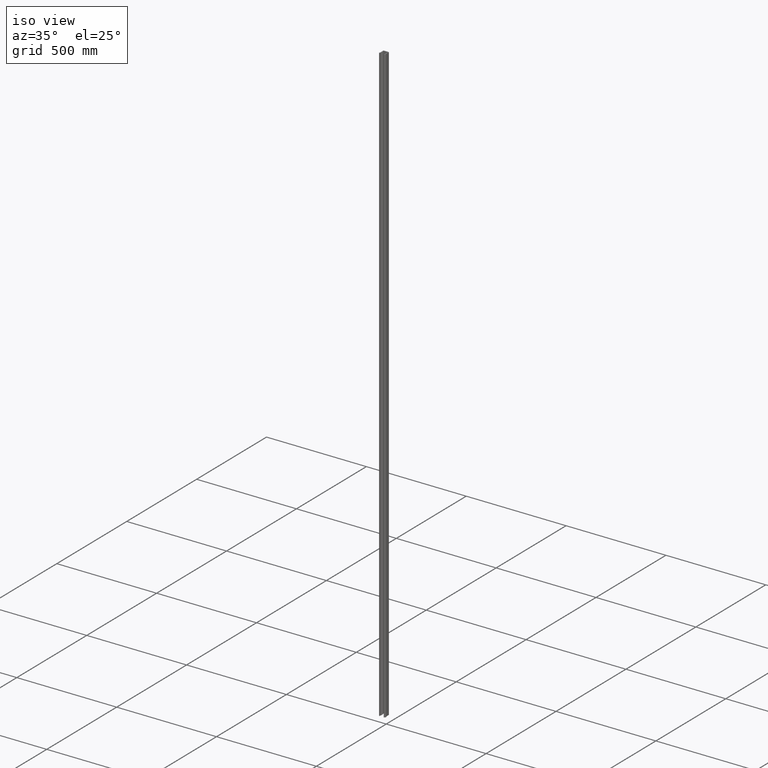
[diagram: clean part render]
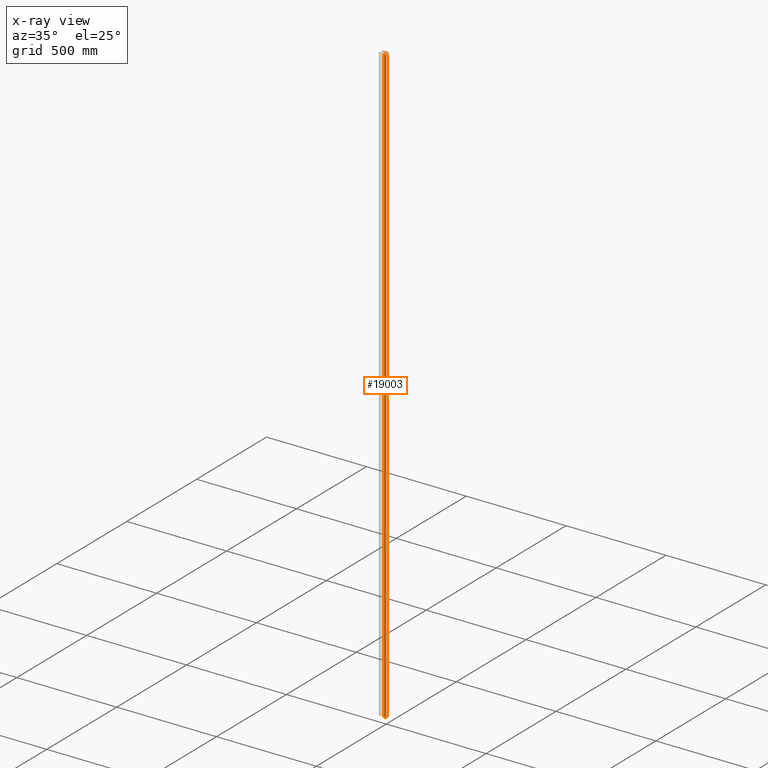
[diagram: x-ray — body ghosted, one internal face saturated and labeled with its STEP entity id]
A machine part, iso view, then the same camera in x-ray: the body is ghosted and one INTERNAL B-rep face — a face not visible from any outside direction — is saturated and labeled: STEP entity #19003.
In plain terms, the highlighted cylindrical surface (edge-blend (fillet) strip) has radius 10 mm, axis along (0, 0, -1).
Its self-contained STEP definition (entity closure, byte-faithful):
#403 = FACE_OUTER_BOUND ( 'NONE', #2275, .T. ) ;
#561 = CARTESIAN_POINT ( 'NONE',  ( 17.48065043899262960, -25.12699001329063009, 1500.000000000000000 ) ) ;
#830 = ORIENTED_EDGE ( 'NONE', *, *, #15275, .T. ) ;
#1692 = CARTESIAN_POINT ( 'NONE',  ( 17.48065043899262960, -25.12699001329063009, -1500.000000000000000 ) ) ;
#2275 = EDGE_LOOP ( 'NONE', ( #18480, #7728, #6061, #830 ) ) ;
#3072 = CIRCLE ( 'NONE', #3749, 10.00000000000000178 ) ;
#3629 = CYLINDRICAL_SURFACE ( 'NONE', #6895, 10.00000000000000178 ) ;
#3749 = AXIS2_PLACEMENT_3D ( 'NONE', #18007, #16629, #9188 ) ;
#3790 = LINE ( 'NONE', #15560, #4957 ) ;
#3856 = DIRECTION ( 'NONE',  ( -0.000000000000000000, -0.000000000000000000, -1.000000000000000000 ) ) ;
#4640 = DIRECTION ( 'NONE',  ( 1.000000000000000000, 0.000000000000000000, 0.000000000000000000 ) ) ;
#4957 = VECTOR ( 'NONE', #17059, 1000.000000000000000 ) ;
#5365 = DIRECTION ( 'NONE',  ( 0.000000000000000000, 0.000000000000000000, -1.000000000000000000 ) ) ;
#6061 = ORIENTED_EDGE ( 'NONE', *, *, #13996, .T. ) ;
#6156 = CARTESIAN_POINT ( 'NONE',  ( 7.867641659140146793, -22.37198326221377442, 1500.000000000000000 ) ) ;
#6205 = VERTEX_POINT ( 'NONE', #18067 ) ;
#6895 = AXIS2_PLACEMENT_3D ( 'NONE', #6156, #9166, #4640 ) ;
#7728 = ORIENTED_EDGE ( 'NONE', *, *, #17326, .F. ) ;
#8000 = CARTESIAN_POINT ( 'NONE',  ( 10.63854517583473580, -31.98042193356769758, 1500.000000000000000 ) ) ;
#8214 = VECTOR ( 'NONE', #5365, 1000.000000000000000 ) ;
#9166 = DIRECTION ( 'NONE',  ( 0.000000000000000000, 0.000000000000000000, -1.000000000000000000 ) ) ;
#9188 = DIRECTION ( 'NONE',  ( -1.000000000000000000, 0.000000000000000000, 0.000000000000000000 ) ) ;
#12448 = CIRCLE ( 'NONE', #13986, 10.00000000000000178 ) ;
#12517 = VERTEX_POINT ( 'NONE', #1692 ) ;
#12846 = CARTESIAN_POINT ( 'NONE',  ( 7.867641659140146793, -22.37198326221377442, -1500.000000000000000 ) ) ;
#12896 = LINE ( 'NONE', #14189, #8214 ) ;
#13846 = VERTEX_POINT ( 'NONE', #561 ) ;
#13986 = AXIS2_PLACEMENT_3D ( 'NONE', #12846, #3856, #17251 ) ;
#13996 = EDGE_CURVE ( 'NONE', #13846, #15169, #3072, .T. ) ;
#14189 = CARTESIAN_POINT ( 'NONE',  ( 17.48065043899262960, -25.12699001329063009, 1500.000000000000000 ) ) ;
#15169 = VERTEX_POINT ( 'NONE', #8000 ) ;
#15275 = EDGE_CURVE ( 'NONE', #15169, #6205, #3790, .T. ) ;
#15560 = CARTESIAN_POINT ( 'NONE',  ( 10.63854517583473580, -31.98042193356769758, 1500.000000000000000 ) ) ;
#16614 = EDGE_CURVE ( 'NONE', #12517, #6205, #12448, .T. ) ;
#16629 = DIRECTION ( 'NONE',  ( -0.000000000000000000, -0.000000000000000000, -1.000000000000000000 ) ) ;
#17059 = DIRECTION ( 'NONE',  ( 0.000000000000000000, 0.000000000000000000, -1.000000000000000000 ) ) ;
#17251 = DIRECTION ( 'NONE',  ( -1.000000000000000000, 0.000000000000000000, 0.000000000000000000 ) ) ;
#17326 = EDGE_CURVE ( 'NONE', #13846, #12517, #12896, .T. ) ;
#18007 = CARTESIAN_POINT ( 'NONE',  ( 7.867641659140146793, -22.37198326221377442, 1500.000000000000000 ) ) ;
#18067 = CARTESIAN_POINT ( 'NONE',  ( 10.63854517583473580, -31.98042193356769758, -1500.000000000000000 ) ) ;
#18480 = ORIENTED_EDGE ( 'NONE', *, *, #16614, .F. ) ;
#19003 = ADVANCED_FACE ( 'NONE', ( #403 ), #3629, .T. ) ;